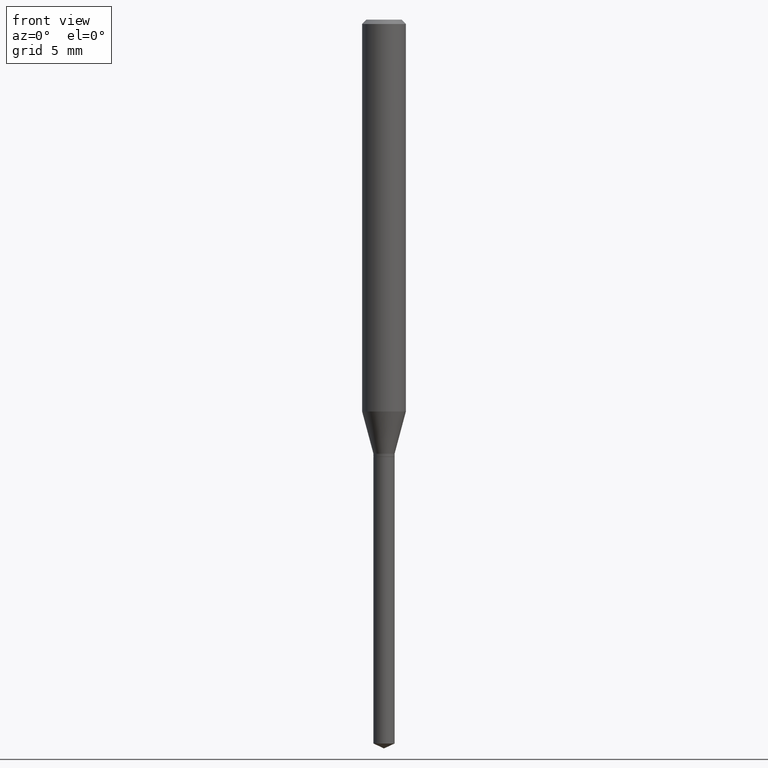
[diagram: clean part render]
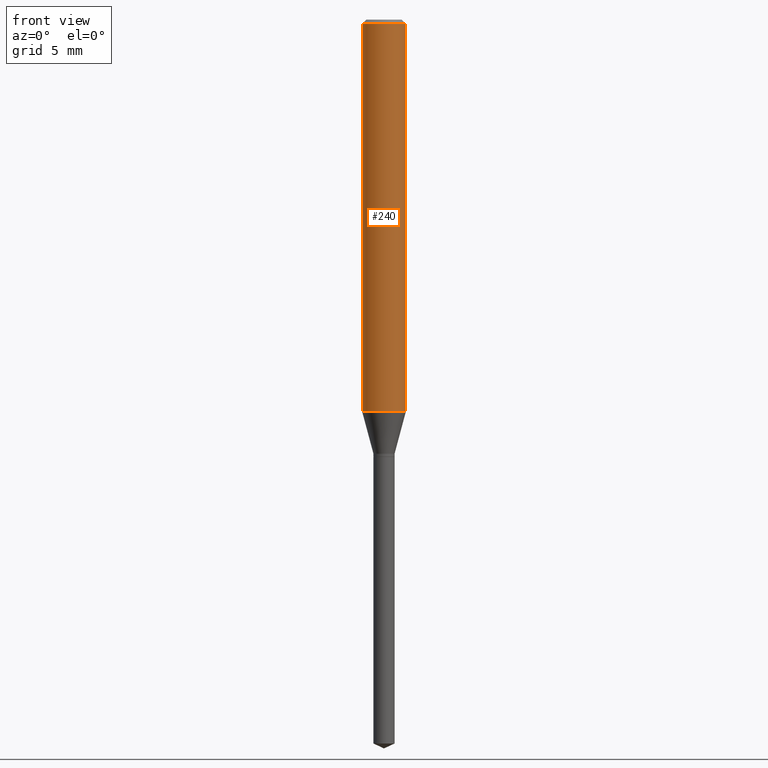
[diagram: same view with one face highlighted and labeled with its STEP entity id]
A machine part, front view. The second image highlights one B-rep face of the part: STEP entity #240.
In plain terms, the highlighted cylindrical surface (edge-blend (fillet) strip) has radius 1.4999 mm, axis along (-0, 0, 1).
Its self-contained STEP definition (entity closure, byte-faithful):
#5 = DIRECTION ( 'NONE',  ( 1.000000000000000000, -6.982962677686266711E-15, 0.000000000000000000 ) ) ;
#10 = EDGE_CURVE ( 'NONE', #353, #35, #292, .T. ) ;
#34 = CARTESIAN_POINT ( 'NONE',  ( -0.05905000000000013710, -3.276759618944889162E-15, -1.058672450369148921 ) ) ;
#35 = VERTEX_POINT ( 'NONE', #459 ) ;
#42 = EDGE_CURVE ( 'NONE', #195, #35, #167, .T. ) ;
#43 = CYLINDRICAL_SURFACE ( 'NONE', #60, 0.05905000000000006771 ) ;
#44 = ORIENTED_EDGE ( 'NONE', *, *, #10, .F. ) ;
#54 = VECTOR ( 'NONE', #90, 39.37007874015748143 ) ;
#60 = AXIS2_PLACEMENT_3D ( 'NONE', #83, #232, #119 ) ;
#72 = ORIENTED_EDGE ( 'NONE', *, *, #315, .T. ) ;
#73 = CARTESIAN_POINT ( 'NONE',  ( 2.588950453345336253E-29, -3.696335104411230233E-15, -1.058672450369148921 ) ) ;
#76 = AXIS2_PLACEMENT_3D ( 'NONE', #117, #384, #5 ) ;
#78 = CARTESIAN_POINT ( 'NONE',  ( -0.05904999999999999832, -1.449209264045143502E-15, -0.01181000000000006697 ) ) ;
#83 = CARTESIAN_POINT ( 'NONE',  ( 0.000000000000000000, 0.000000000000000000, 0.000000000000000000 ) ) ;
#90 = DIRECTION ( 'NONE',  ( -2.445468806185136877E-29, 3.491481338843145188E-15, 1.000000000000000000 ) ) ;
#94 = ORIENTED_EDGE ( 'NONE', *, *, #42, .T. ) ;
#117 = CARTESIAN_POINT ( 'NONE',  ( 2.888098660104662452E-31, -4.123439461173777798E-17, -0.01181000000000006697 ) ) ;
#119 = DIRECTION ( 'NONE',  ( 1.000000000000000000, -6.982962677686266711E-15, 4.876176775795936353E-29 ) ) ;
#133 = DIRECTION ( 'NONE',  ( -2.445468806185136877E-29, 3.491481338843145188E-15, 1.000000000000000000 ) ) ;
#167 = LINE ( 'NONE', #467, #409 ) ;
#172 = VERTEX_POINT ( 'NONE', #34 ) ;
#194 = AXIS2_PLACEMENT_3D ( 'NONE', #73, #225, #345 ) ;
#195 = VERTEX_POINT ( 'NONE', #215 ) ;
#215 = CARTESIAN_POINT ( 'NONE',  ( 0.05905000000000013710, -4.108679050528605153E-15, -1.058672450369148921 ) ) ;
#225 = DIRECTION ( 'NONE',  ( -2.445468806185136597E-29, 3.491481338843145583E-15, 1.000000000000000000 ) ) ;
#230 = LINE ( 'NONE', #383, #54 ) ;
#232 = DIRECTION ( 'NONE',  ( -2.445468806185136597E-29, 3.491481338843145583E-15, 1.000000000000000000 ) ) ;
#234 = FACE_OUTER_BOUND ( 'NONE', #360, .T. ) ;
#235 = CIRCLE ( 'NONE', #194, 0.05905000000000013710 ) ;
#240 = ADVANCED_FACE ( 'NONE', ( #234 ), #43, .T. ) ;
#292 = CIRCLE ( 'NONE', #76, 0.05904999999999999832 ) ;
#315 = EDGE_CURVE ( 'NONE', #172, #195, #235, .T. ) ;
#345 = DIRECTION ( 'NONE',  ( 1.000000000000000000, -6.982962677686264344E-15, 0.000000000000000000 ) ) ;
#346 = ORIENTED_EDGE ( 'NONE', *, *, #385, .F. ) ;
#353 = VERTEX_POINT ( 'NONE', #78 ) ;
#360 = EDGE_LOOP ( 'NONE', ( #346, #72, #94, #44 ) ) ;
#383 = CARTESIAN_POINT ( 'NONE',  ( -0.05905000000000006771, 4.195754854663396409E-16, -2.904631170795525045E-30 ) ) ;
#384 = DIRECTION ( 'NONE',  ( -2.445468806185136597E-29, 3.491481338843145583E-15, 1.000000000000000000 ) ) ;
#385 = EDGE_CURVE ( 'NONE', #172, #353, #230, .T. ) ;
#409 = VECTOR ( 'NONE', #133, 39.37007874015748143 ) ;
#459 = CARTESIAN_POINT ( 'NONE',  ( 0.05904999999999999832, -4.535783407291118600E-16, -0.01181000000000006697 ) ) ;
#467 = CARTESIAN_POINT ( 'NONE',  ( 0.05905000000000006771, -4.123439461173745257E-16, 2.879382386107503723E-30 ) ) ;